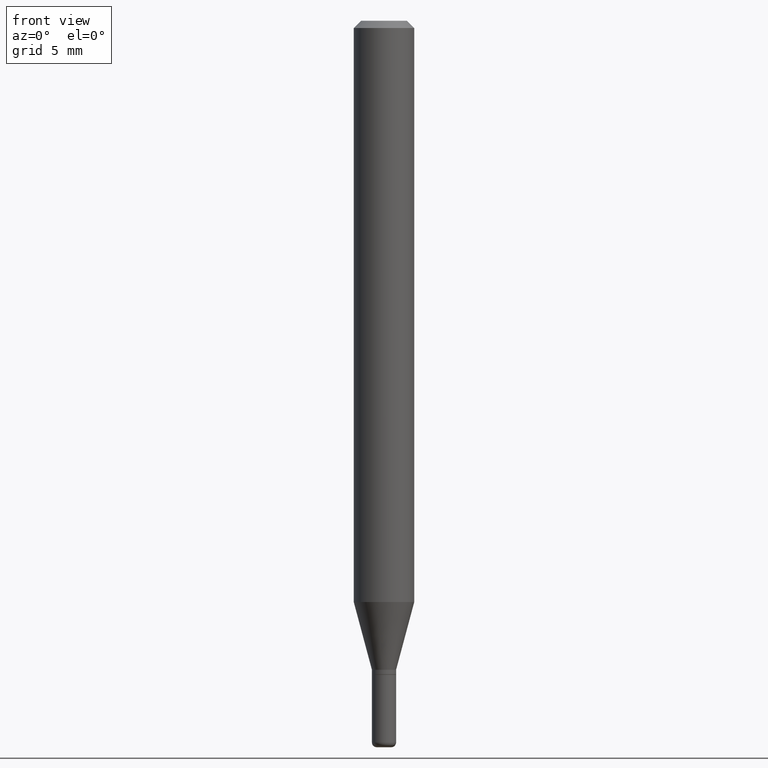
[diagram: clean part render]
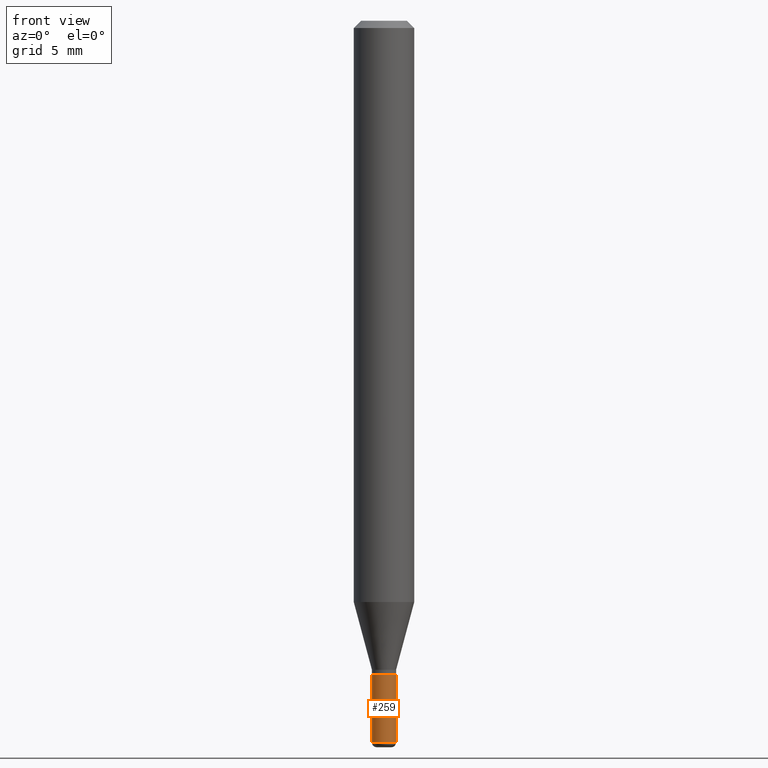
[diagram: same view with one face highlighted and labeled with its STEP entity id]
A machine part, front view. The second image highlights one B-rep face of the part: STEP entity #259.
In plain terms, the highlighted cylindrical surface (edge-blend (fillet) strip) has radius 0.635 mm, axis along (-0, 0, 1).
Its self-contained STEP definition (entity closure, byte-faithful):
#8 = CARTESIAN_POINT ( 'NONE',  ( 0.02499999999999997363, -1.745740669421564705E-16, 1.219044193948982547E-30 ) ) ;
#27 = AXIS2_PLACEMENT_3D ( 'NONE', #247, #97, #285 ) ;
#52 = CIRCLE ( 'NONE', #379, 0.02499999999999994588 ) ;
#69 = EDGE_CURVE ( 'NONE', #311, #487, #72, .T. ) ;
#72 = LINE ( 'NONE', #119, #244 ) ;
#97 = DIRECTION ( 'NONE',  ( -2.445468806185136597E-29, 3.491481338843145583E-15, 1.000000000000000000 ) ) ;
#111 = VERTEX_POINT ( 'NONE', #354 ) ;
#119 = CARTESIAN_POINT ( 'NONE',  ( -0.02499999999999997363, 1.776356839400248591E-16, -1.229733772563725079E-30 ) ) ;
#149 = ORIENTED_EDGE ( 'NONE', *, *, #336, .T. ) ;
#163 = CARTESIAN_POINT ( 'NONE',  ( -0.02499999999999994588, -4.780267817217242146E-15, -1.490000000000000213 ) ) ;
#206 = CARTESIAN_POINT ( 'NONE',  ( 3.643748521215853910E-29, -5.202307194876288105E-15, -1.490000000000000213 ) ) ;
#207 = ORIENTED_EDGE ( 'NONE', *, *, #243, .F. ) ;
#209 = EDGE_LOOP ( 'NONE', ( #367, #482, #149, #207 ) ) ;
#215 = VECTOR ( 'NONE', #477, 39.37007874015748143 ) ;
#236 = DIRECTION ( 'NONE',  ( -2.445468806185136877E-29, 3.491481338843145188E-15, 1.000000000000000000 ) ) ;
#243 = EDGE_CURVE ( 'NONE', #487, #111, #514, .T. ) ;
#244 = VECTOR ( 'NONE', #236, 39.37007874015748143 ) ;
#247 = CARTESIAN_POINT ( 'NONE',  ( 3.301382888349935078E-29, -4.713499807438246596E-15, -1.350000000000000089 ) ) ;
#259 = ADVANCED_FACE ( 'NONE', ( #448 ), #295, .T. ) ;
#285 = DIRECTION ( 'NONE',  ( 1.000000000000000000, -6.982962677686254878E-15, 0.000000000000000000 ) ) ;
#287 = LINE ( 'NONE', #8, #215 ) ;
#295 = CYLINDRICAL_SURFACE ( 'NONE', #298, 0.02499999999999997363 ) ;
#296 = VERTEX_POINT ( 'NONE', #478 ) ;
#298 = AXIS2_PLACEMENT_3D ( 'NONE', #327, #444, #409 ) ;
#302 = CARTESIAN_POINT ( 'NONE',  ( -0.02500000000000000139, -4.780267817217242146E-15, -1.350000000000000089 ) ) ;
#311 = VERTEX_POINT ( 'NONE', #163 ) ;
#327 = CARTESIAN_POINT ( 'NONE',  ( 0.000000000000000000, 0.000000000000000000, 0.000000000000000000 ) ) ;
#336 = EDGE_CURVE ( 'NONE', #296, #111, #287, .T. ) ;
#354 = CARTESIAN_POINT ( 'NONE',  ( 0.02500000000000000139, -4.888073874380403263E-15, -1.350000000000000089 ) ) ;
#357 = EDGE_CURVE ( 'NONE', #311, #296, #52, .T. ) ;
#364 = DIRECTION ( 'NONE',  ( -2.445468806185136597E-29, 3.491481338843145583E-15, 1.000000000000000000 ) ) ;
#367 = ORIENTED_EDGE ( 'NONE', *, *, #69, .F. ) ;
#379 = AXIS2_PLACEMENT_3D ( 'NONE', #206, #364, #481 ) ;
#409 = DIRECTION ( 'NONE',  ( 1.000000000000000000, -6.982962677686265922E-15, 4.876176775795935232E-29 ) ) ;
#444 = DIRECTION ( 'NONE',  ( -2.445468806185136597E-29, 3.491481338843145583E-15, 1.000000000000000000 ) ) ;
#448 = FACE_OUTER_BOUND ( 'NONE', #209, .T. ) ;
#477 = DIRECTION ( 'NONE',  ( -2.445468806185136877E-29, 3.491481338843145188E-15, 1.000000000000000000 ) ) ;
#478 = CARTESIAN_POINT ( 'NONE',  ( 0.02499999999999994588, -5.376881261818443984E-15, -1.490000000000000213 ) ) ;
#481 = DIRECTION ( 'NONE',  ( 1.000000000000000000, -6.982962677686269866E-15, 0.000000000000000000 ) ) ;
#482 = ORIENTED_EDGE ( 'NONE', *, *, #357, .T. ) ;
#487 = VERTEX_POINT ( 'NONE', #302 ) ;
#514 = CIRCLE ( 'NONE', #27, 0.02500000000000000139 ) ;